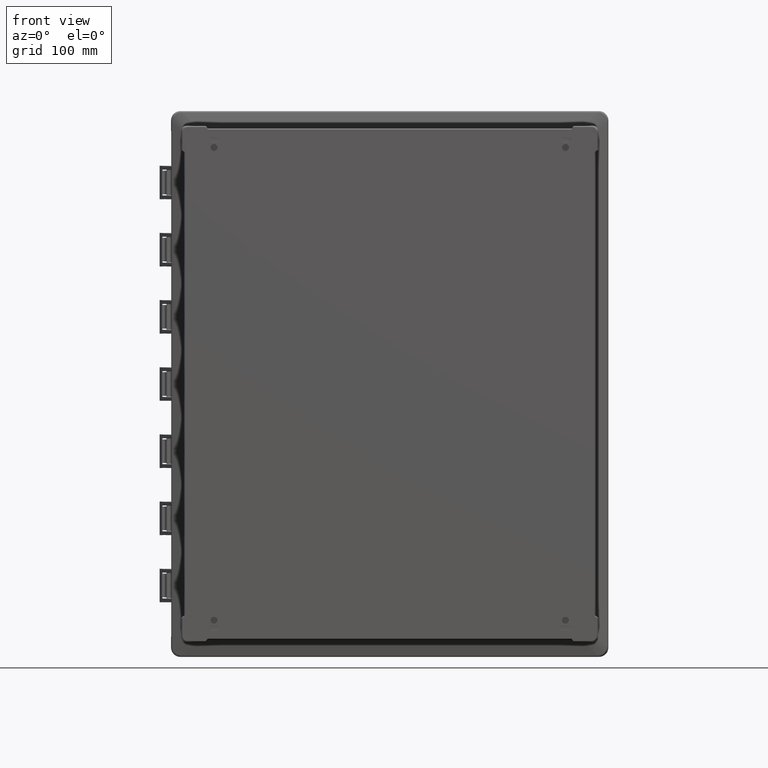
[diagram: clean part render]
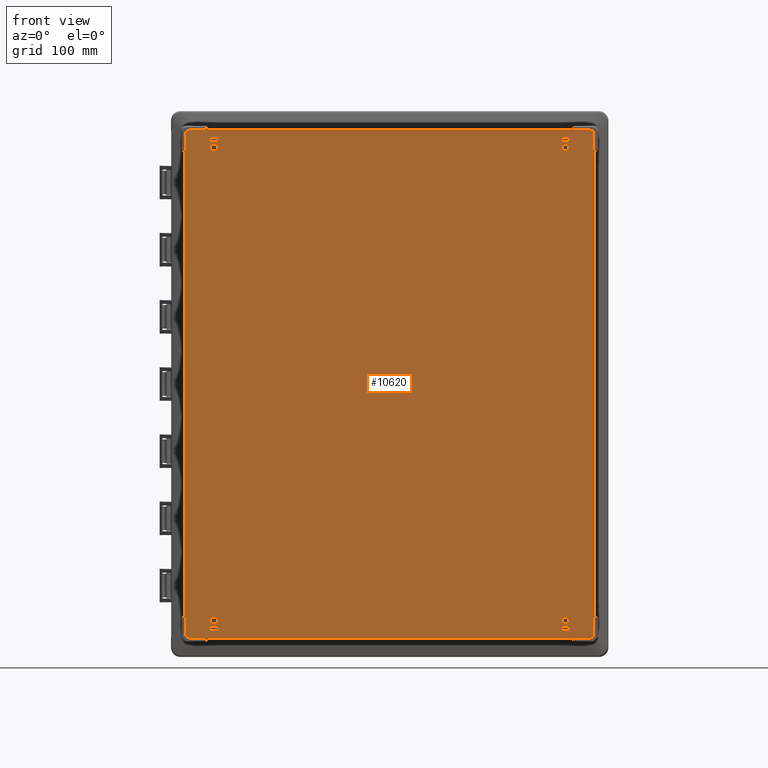
[diagram: same view with one face highlighted and labeled with its STEP entity id]
A machine part, front view. The second image highlights one B-rep face of the part: STEP entity #10620.
In plain terms, the highlighted planar face has unit normal (0, 1, 0).
Its self-contained STEP definition (entity closure, byte-faithful):
#34 = VERTEX_POINT ( 'NONE', #20179 ) ;
#49 = AXIS2_PLACEMENT_3D ( 'NONE', #17762, #17489, #17461 ) ;
#134 = B_SPLINE_CURVE_WITH_KNOTS ( 'NONE', 3,
 ( #27930, #24982, #22025, #19072 ),
 .UNSPECIFIED., .F., .F.,
 ( 4, 4 ),
 ( 0.0000000000000000000, 1.000000000000000000 ),
 .UNSPECIFIED. ) ;
#163 = CARTESIAN_POINT ( 'NONE',  ( -206.6226002191000100, -189.4000000000000100, 253.7470360444999900 ) ) ;
#173 = CIRCLE ( 'NONE', #2478, 0.5000000000000004400 ) ;
#178 = AXIS2_PLACEMENT_3D ( 'NONE', #23946, #20995, #18038 ) ;
#179 = VERTEX_POINT ( 'NONE', #18135 ) ;
#184 = DIRECTION ( 'NONE',  ( 1.000000000000000000, 0.0000000000000000000, 0.0000000000000000000 ) ) ;
#189 = ORIENTED_EDGE ( 'NONE', *, *, #13894, .F. ) ;
#213 = CARTESIAN_POINT ( 'NONE',  ( -187.3358505189668500, -189.4000000000000100, 257.0388907693917400 ) ) ;
#250 = CARTESIAN_POINT ( 'NONE',  ( -209.8471312403999900, -189.4000000000000100, -236.6179237881000000 ) ) ;
#253 = VERTEX_POINT ( 'NONE', #17044 ) ;
#268 = VERTEX_POINT ( 'NONE', #16599 ) ;
#376 = DIRECTION ( 'NONE',  ( -1.000000000000000000, 0.0000000000000000000, 0.0000000000000000000 ) ) ;
#396 = ORIENTED_EDGE ( 'NONE', *, *, #25455, .F. ) ;
#402 = CARTESIAN_POINT ( 'NONE',  ( 177.9000000000000100, -189.4000000000000100, 239.3000000000000100 ) ) ;
#404 = VERTEX_POINT ( 'NONE', #14309 ) ;
#485 = CARTESIAN_POINT ( 'NONE',  ( -207.7137684761455900, -189.4000028413141200, 236.3927161377510800 ) ) ;
#503 = DIRECTION ( 'NONE',  ( 0.0000000000000000000, -1.000000000000000000, 0.0000000000000000000 ) ) ;
#576 = VERTEX_POINT ( 'NONE', #10581 ) ;
#588 = CARTESIAN_POINT ( 'NONE',  ( -173.9000000000000100, -189.4000000000000100, -249.3000000000000100 ) ) ;
#603 = CARTESIAN_POINT ( 'NONE',  ( -173.9000000000000100, -189.4000000000000100, -245.3000000000000100 ) ) ;
#636 = EDGE_CURVE ( 'NONE', #21756, #27919, #9628, .T. ) ;
#679 = CARTESIAN_POINT ( 'NONE',  ( 186.2179237881000200, -189.4000000000000100, 260.2471312403999900 ) ) ;
#713 = FACE_OUTER_BOUND ( 'NONE', #20887, .T. ) ;
#715 = CARTESIAN_POINT ( 'NONE',  ( 173.9000000000000100, -189.4000000000000100, -245.3000000000000100 ) ) ;
#777 = DIRECTION ( 'NONE',  ( -1.000000000000000000, 0.0000000000000000000, 0.0000000000000000000 ) ) ;
#801 = DIRECTION ( 'NONE',  ( 0.0000000000000000000, 0.0000000000000000000, 1.000000000000000000 ) ) ;
#831 = DIRECTION ( 'NONE',  ( 0.0000000000000000000, 1.000000000000000000, 0.0000000000000000000 ) ) ;
#870 = CARTESIAN_POINT ( 'NONE',  ( 181.9000000000000100, -189.4000000000000100, 248.8000000000000100 ) ) ;
#907 = CIRCLE ( 'NONE', #26211, 0.5000000000000004400 ) ;
#909 = EDGE_LOOP ( 'NONE', ( #9790, #24346, #17185, #21669, #13718, #22846, #21001, #19378 ) ) ;
#931 = EDGE_CURVE ( 'NONE', #19685, #576, #5671, .T. ) ;
#1024 = B_SPLINE_CURVE_WITH_KNOTS ( 'NONE', 3,
 ( #24655, #24601, #24569, #24512 ),
 .UNSPECIFIED., .F., .F.,
 ( 4, 4 ),
 ( 0.0000000000000000000, 1.000000000000000000 ),
 .UNSPECIFIED. ) ;
#1061 = AXIS2_PLACEMENT_3D ( 'NONE', #18652, #15698, #12686 ) ;
#1095 = CARTESIAN_POINT ( 'NONE',  ( -206.6348181317999900, -189.4000000000000100, 238.4618614003000200 ) ) ;
#1133 = CIRCLE ( 'NONE', #22876, 0.5000000000000004400 ) ;
#1145 = VECTOR ( 'NONE', #24683, 1000.000000000000000 ) ;
#1243 = CARTESIAN_POINT ( 'NONE',  ( 181.9000000000000100, -189.4000000000000100, -245.3000000000000100 ) ) ;
#1277 = CIRCLE ( 'NONE', #9789, 0.5000000000000004400 ) ;
#1300 = EDGE_CURVE ( 'NONE', #18085, #8840, #6094, .T. ) ;
#1315 = CARTESIAN_POINT ( 'NONE',  ( -184.7863800412077900, -189.4000012242001400, 258.5139586212985700 ) ) ;
#1359 = VERTEX_POINT ( 'NONE', #715 ) ;
#1364 = CARTESIAN_POINT ( 'NONE',  ( -173.4000000000000100, -189.4000000000000100, -248.8000000000000100 ) ) ;
#1365 = EDGE_LOOP ( 'NONE', ( #7833, #24501 ) ) ;
#1390 = CARTESIAN_POINT ( 'NONE',  ( 184.0709002659000100, -189.4000000000000100, 257.6471312137999800 ) ) ;
#1431 = B_SPLINE_CURVE_WITH_KNOTS ( 'NONE', 3,
 ( #25374, #13526, #10515, #7534 ),
 .UNSPECIFIED., .F., .F.,
 ( 4, 4 ),
 ( 0.0000000000000000000, 1.000000000000000000 ),
 .UNSPECIFIED. ) ;
#1432 = B_SPLINE_CURVE_WITH_KNOTS ( 'NONE', 3,
 ( #28055, #27987, #27965, #27958 ),
 .UNSPECIFIED., .F., .F.,
 ( 4, 4 ),
 ( 0.0000000000000000000, 1.000000000000000000 ),
 .UNSPECIFIED. ) ;
#1472 = CARTESIAN_POINT ( 'NONE',  ( 173.9000000000000100, -189.4000000000000100, 248.8000000000000100 ) ) ;
#1479 = FACE_BOUND ( 'NONE', #11761, .T. ) ;
#1485 = LINE ( 'NONE', #27641, #1145 ) ;
#1563 = CARTESIAN_POINT ( 'NONE',  ( 173.9000000000000100, -189.4000000000000100, -249.3000000000000100 ) ) ;
#1613 = VERTEX_POINT ( 'NONE', #6339 ) ;
#1616 = DIRECTION ( 'NONE',  ( 0.0000000000000000000, -1.000000000000000000, 0.0000000000000000000 ) ) ;
#1641 = ORIENTED_EDGE ( 'NONE', *, *, #17540, .T. ) ;
#1703 = ORIENTED_EDGE ( 'NONE', *, *, #23472, .F. ) ;
#1754 = AXIS2_PLACEMENT_3D ( 'NONE', #2555, #2550, #2507 ) ;
#1766 = ORIENTED_EDGE ( 'NONE', *, *, #2922, .T. ) ;
#1846 = VECTOR ( 'NONE', #5633, 1000.000000000000000 ) ;
#1861 = ORIENTED_EDGE ( 'NONE', *, *, #21490, .F. ) ;
#1895 = EDGE_CURVE ( 'NONE', #20259, #25296, #1024, .T. ) ;
#1920 = CARTESIAN_POINT ( 'NONE',  ( -185.8805980163000100, -189.4000000000000100, 257.0470360444999800 ) ) ;
#1924 = CARTESIAN_POINT ( 'NONE',  ( 184.7863800412077900, -189.4000012242001400, -258.5139586212985700 ) ) ;
#1956 = CARTESIAN_POINT ( 'NONE',  ( -206.6348181317999900, -189.4000000000000100, 238.4618614003000200 ) ) ;
#2018 = VERTEX_POINT ( 'NONE', #22905 ) ;
#2074 = DIRECTION ( 'NONE',  ( 0.0000000000000000000, 0.0000000000000000000, 1.000000000000000000 ) ) ;
#2139 = CIRCLE ( 'NONE', #18232, 0.5000000000000004400 ) ;
#2160 = DIRECTION ( 'NONE',  ( 0.0000000000000000000, 1.000000000000000000, 0.0000000000000000000 ) ) ;
#2171 = VECTOR ( 'NONE', #3265, 1000.000000000000000 ) ;
#2204 = AXIS2_PLACEMENT_3D ( 'NONE', #20333, #17368, #14395 ) ;
#2209 = LINE ( 'NONE', #28325, #22112 ) ;
#2231 = VERTEX_POINT ( 'NONE', #17630 ) ;
#2259 = EDGE_CURVE ( 'NONE', #11053, #268, #24083, .T. ) ;
#2297 = CARTESIAN_POINT ( 'NONE',  ( -182.4000000000000100, -189.4000000000000100, -248.8000000000000100 ) ) ;
#2430 = CIRCLE ( 'NONE', #11927, 3.275564174676004500 ) ;
#2478 = AXIS2_PLACEMENT_3D ( 'NONE', #13109, #10108, #7146 ) ;
#2494 = LINE ( 'NONE', #28615, #24253 ) ;
#2499 = CARTESIAN_POINT ( 'NONE',  ( -182.4000000000000100, -189.4000000000000100, 248.8000000000000100 ) ) ;
#2503 = AXIS2_PLACEMENT_3D ( 'NONE', #7437, #21620, #27541 ) ;
#2507 = DIRECTION ( 'NONE',  ( 0.0000000000000000000, 0.0000000000000000000, -1.000000000000000000 ) ) ;
#2550 = DIRECTION ( 'NONE',  ( 0.0000000000000000000, 1.000000000000000000, 0.0000000000000000000 ) ) ;
#2555 = CARTESIAN_POINT ( 'NONE',  ( -181.9000000000000100, -189.4000000000000100, -248.8000000000000100 ) ) ;
#2575 = ORIENTED_EDGE ( 'NONE', *, *, #19302, .F. ) ;
#2597 = CARTESIAN_POINT ( 'NONE',  ( 182.4000000000000100, -189.4000000000000100, -245.8000000000000100 ) ) ;
#2604 = DIRECTION ( 'NONE',  ( 0.0000000000000000000, 1.000000000000000000, 0.0000000000000000000 ) ) ;
#2606 = CARTESIAN_POINT ( 'NONE',  ( 206.6388907693916500, -189.4000000000000100, 237.7347736056335100 ) ) ;
#2612 = CARTESIAN_POINT ( 'NONE',  ( 206.6226002191000100, -189.4000000000000100, 253.7470360444999900 ) ) ;
#2621 = ORIENTED_EDGE ( 'NONE', *, *, #29152, .F. ) ;
#2649 = CARTESIAN_POINT ( 'NONE',  ( 206.6429634069458200, -189.4000000000000100, 237.0076858109667600 ) ) ;
#2848 = CARTESIAN_POINT ( 'NONE',  ( 206.6348181317999900, -189.4000000000000100, -238.4618614003000200 ) ) ;
#2889 = ORIENTED_EDGE ( 'NONE', *, *, #11517, .F. ) ;
#2906 = VERTEX_POINT ( 'NONE', #7104 ) ;
#2922 = EDGE_CURVE ( 'NONE', #5959, #12480, #6989, .T. ) ;
#2944 = B_SPLINE_CURVE_WITH_KNOTS ( 'NONE', 3,
 ( #17062, #14093, #11085, #8106 ),
 .UNSPECIFIED., .F., .F.,
 ( 4, 4 ),
 ( 0.0000000000000000000, 1.000000000000000000 ),
 .UNSPECIFIED. ) ;
#2950 = CARTESIAN_POINT ( 'NONE',  ( 206.6470360445000000, -189.4000000000000100, 236.2805980162999900 ) ) ;
#3019 = FACE_BOUND ( 'NONE', #25505, .T. ) ;
#3174 = VERTEX_POINT ( 'NONE', #2499 ) ;
#3197 = VERTEX_POINT ( 'NONE', #2297 ) ;
#3199 = CARTESIAN_POINT ( 'NONE',  ( -206.6226008270375000, -189.4000497517026800, 248.6519778297667100 ) ) ;
#3202 = CARTESIAN_POINT ( 'NONE',  ( -186.2179237881000200, -189.4000000000000100, -260.2471312403999900 ) ) ;
#3214 = CARTESIAN_POINT ( 'NONE',  ( 188.0634767703000100, -189.4000000000000100, -257.0348181318000200 ) ) ;
#3225 = DIRECTION ( 'NONE',  ( 0.0000000000000000000, 1.000000000000000000, 0.0000000000000000000 ) ) ;
#3251 = CARTESIAN_POINT ( 'NONE',  ( -186.6082242676334300, -189.4000000000000100, 257.0429634069458300 ) ) ;
#3265 = DIRECTION ( 'NONE',  ( -1.000000000000000000, 0.0000000000000000000, 0.0000000000000000000 ) ) ;
#3278 = VERTEX_POINT ( 'NONE', #588 ) ;
#3288 = VERTEX_POINT ( 'NONE', #250 ) ;
#3306 = CARTESIAN_POINT ( 'NONE',  ( 181.9000000000000100, -189.4000000000000100, -245.8000000000000100 ) ) ;
#3376 = CIRCLE ( 'NONE', #18419, 3.500000000000003100 ) ;
#3408 = DIRECTION ( 'NONE',  ( 0.0000000000000000000, 1.000000000000000000, 0.0000000000000000000 ) ) ;
#3520 = CARTESIAN_POINT ( 'NONE',  ( -208.7805009077971500, -189.4000056826775400, 236.5048342591457000 ) ) ;
#3537 = VERTEX_POINT ( 'NONE', #15542 ) ;
#3540 = CARTESIAN_POINT ( 'NONE',  ( -173.9000000000000100, -189.4000000000000100, 245.8000000000000100 ) ) ;
#3607 = B_SPLINE_CURVE_WITH_KNOTS ( 'NONE', 3,
 ( #19909, #4936, #1924, #28050 ),
 .UNSPECIFIED., .F., .F.,
 ( 4, 4 ),
 ( 0.0000000000000000000, 1.000000000000000000 ),
 .UNSPECIFIED. ) ;
#3630 = LINE ( 'NONE', #603, #18274 ) ;
#3711 = VERTEX_POINT ( 'NONE', #7045 ) ;
#3712 = CARTESIAN_POINT ( 'NONE',  ( 186.1054818641173100, -189.4000000000000100, 259.1804328417719000 ) ) ;
#3726 = B_SPLINE_CURVE_WITH_KNOTS ( 'NONE', 3,
 ( #28743, #5636, #25778, #2612 ),
 .UNSPECIFIED., .F., .F.,
 ( 4, 4 ),
 ( 0.0000000000000000000, 1.000000000000000000 ),
 .UNSPECIFIED. ) ;
#3757 = VERTEX_POINT ( 'NONE', #10174 ) ;
#3772 = FACE_BOUND ( 'NONE', #17815, .T. ) ;
#3811 = CARTESIAN_POINT ( 'NONE',  ( 184.0709002659000100, -189.4000000000000100, 257.6471312137999800 ) ) ;
#3829 = ORIENTED_EDGE ( 'NONE', *, *, #6107, .T. ) ;
#3913 = B_SPLINE_CURVE_WITH_KNOTS ( 'NONE', 3,
 ( #15854, #12847, #9859, #6881 ),
 .UNSPECIFIED., .F., .F.,
 ( 4, 4 ),
 ( 0.0000000000000000000, 1.000000000000000000 ),
 .UNSPECIFIED. ) ;
#4002 = VERTEX_POINT ( 'NONE', #11375 ) ;
#4047 = CARTESIAN_POINT ( 'NONE',  ( -203.3470360444999900, -189.4000000000000100, 257.0226002191000100 ) ) ;
#4058 = DIRECTION ( 'NONE',  ( 0.0000000000000000000, 0.0000000000000000000, 1.000000000000000000 ) ) ;
#4080 = CIRCLE ( 'NONE', #4605, 3.500000000000003100 ) ;
#4090 = EDGE_CURVE ( 'NONE', #28904, #21584, #4080, .T. ) ;
#4101 = CARTESIAN_POINT ( 'NONE',  ( -184.0709002659000100, -189.4000000000000100, 257.6471312137999800 ) ) ;
#4103 = ORIENTED_EDGE ( 'NONE', *, *, #18150, .F. ) ;
#4127 = CARTESIAN_POINT ( 'NONE',  ( -206.6470354242175900, -189.3999289226741500, 237.7347736056334800 ) ) ;
#4138 = VERTEX_POINT ( 'NONE', #25608 ) ;
#4152 = DIRECTION ( 'NONE',  ( 0.0000000000000000000, 0.0000000000000000000, 1.000000000000000000 ) ) ;
#4156 = CARTESIAN_POINT ( 'NONE',  ( -182.4000000000000100, -189.4000000000000100, 245.8000000000000100 ) ) ;
#4172 = EDGE_CURVE ( 'NONE', #7900, #9466, #27246, .T. ) ;
#4178 = LINE ( 'NONE', #4156, #18370 ) ;
#4245 = EDGE_CURVE ( 'NONE', #21584, #28904, #28672, .T. ) ;
#4307 = VECTOR ( 'NONE', #7647, 1000.000000000000000 ) ;
#4344 = CARTESIAN_POINT ( 'NONE',  ( -184.0709002659000100, -189.4000000000000100, 257.6471312137999800 ) ) ;
#4346 = EDGE_CURVE ( 'NONE', #20925, #4138, #16064, .T. ) ;
#4350 = DIRECTION ( 'NONE',  ( 1.000000000000000000, 0.0000000000000000000, 0.0000000000000000000 ) ) ;
#4389 = ORIENTED_EDGE ( 'NONE', *, *, #21843, .F. ) ;
#4412 = CARTESIAN_POINT ( 'NONE',  ( -181.9000000000000100, -189.4000000000000100, -249.3000000000000100 ) ) ;
#4422 = CARTESIAN_POINT ( 'NONE',  ( 184.7865747733207200, -189.4000000000000100, 258.5137978893162100 ) ) ;
#4461 = ORIENTED_EDGE ( 'NONE', *, *, #27407, .T. ) ;
#4483 = CARTESIAN_POINT ( 'NONE',  ( -188.0634767703000100, -189.4000000000000100, -257.0348181318000200 ) ) ;
#4487 = DIRECTION ( 'NONE',  ( 1.000000000000000000, 0.0000000000000000000, 1.694705042277139700E-013 ) ) ;
#4508 = LINE ( 'NONE', #4412, #22096 ) ;
#4522 = VECTOR ( 'NONE', #9581, 1000.000000000000000 ) ;
#4578 = VERTEX_POINT ( 'NONE', #21258 ) ;
#4605 = AXIS2_PLACEMENT_3D ( 'NONE', #14106, #17073, #20047 ) ;
#4736 = VERTEX_POINT ( 'NONE', #10749 ) ;
#4754 = CARTESIAN_POINT ( 'NONE',  ( -206.6470360445000000, -189.4000000000000100, 236.2805980162999900 ) ) ;
#4814 = B_SPLINE_CURVE_WITH_KNOTS ( 'NONE', 3,
 ( #9221, #6241, #3199, #163 ),
 .UNSPECIFIED., .F., .F.,
 ( 4, 4 ),
 ( 0.0000000000000000000, 1.000000000000000000 ),
 .UNSPECIFIED. ) ;
#4936 = CARTESIAN_POINT ( 'NONE',  ( 185.5018598197212900, -189.4000024482382400, -259.3807860261519000 ) ) ;
#4978 = ORIENTED_EDGE ( 'NONE', *, *, #1895, .T. ) ;
#5076 = DIRECTION ( 'NONE',  ( 0.0000000000000000000, -1.000000000000000000, 0.0000000000000000000 ) ) ;
#5157 = CARTESIAN_POINT ( 'NONE',  ( -203.3470360444999900, -189.4000000000000100, 253.7470360444999900 ) ) ;
#5277 = VERTEX_POINT ( 'NONE', #23392 ) ;
#5291 = FACE_BOUND ( 'NONE', #20281, .T. ) ;
#5300 = DIRECTION ( 'NONE',  ( 0.0000000000000000000, 0.0000000000000000000, 1.000000000000000000 ) ) ;
#5526 = VERTEX_POINT ( 'NONE', #8699 ) ;
#5565 = VERTEX_POINT ( 'NONE', #1956 ) ;
#5620 = LINE ( 'NONE', #2597, #22149 ) ;
#5628 = CARTESIAN_POINT ( 'NONE',  ( -173.9000000000000100, -189.4000000000000100, -248.8000000000000100 ) ) ;
#5633 = DIRECTION ( 'NONE',  ( 1.000000000000000000, 0.0000000000000000000, 0.0000000000000000000 ) ) ;
#5636 = CARTESIAN_POINT ( 'NONE',  ( 206.6307454942459300, -189.4000000000000100, 243.5569196150333700 ) ) ;
#5640 = CARTESIAN_POINT ( 'NONE',  ( -181.9000000000000100, -189.4000000000000100, 249.3000000000000100 ) ) ;
#5671 = LINE ( 'NONE', #5640, #1846 ) ;
#5688 = VERTEX_POINT ( 'NONE', #23988 ) ;
#5759 = CIRCLE ( 'NONE', #1061, 3.275564174676004500 ) ;
#5900 = VERTEX_POINT ( 'NONE', #9459 ) ;
#5903 = CIRCLE ( 'NONE', #28690, 3.500000000000003100 ) ;
#5922 = EDGE_CURVE ( 'NONE', #12458, #26096, #11775, .T. ) ;
#5959 = VERTEX_POINT ( 'NONE', #6683 ) ;
#5984 = CIRCLE ( 'NONE', #25166, 0.5000000000000004400 ) ;
#5999 = ORIENTED_EDGE ( 'NONE', *, *, #24781, .F. ) ;
#6007 = EDGE_CURVE ( 'NONE', #18261, #15531, #3726, .T. ) ;
#6054 = ORIENTED_EDGE ( 'NONE', *, *, #2259, .F. ) ;
#6070 = FACE_BOUND ( 'NONE', #26418, .T. ) ;
#6091 = DIRECTION ( 'NONE',  ( 0.0000000000000000000, 1.000000000000000000, 0.0000000000000000000 ) ) ;
#6094 = CIRCLE ( 'NONE', #6619, 0.5000000000000004400 ) ;
#6107 = EDGE_CURVE ( 'NONE', #1613, #20259, #1432, .T. ) ;
#6196 = CARTESIAN_POINT ( 'NONE',  ( -186.2179237881000200, -189.4000000000000100, -260.2471312403999900 ) ) ;
#6217 = CARTESIAN_POINT ( 'NONE',  ( 185.8805980163000100, -189.4000000000000100, 257.0470360444999800 ) ) ;
#6241 = CARTESIAN_POINT ( 'NONE',  ( -206.6226014348995100, -189.4000995034058100, 243.5569196150333700 ) ) ;
#6244 = CARTESIAN_POINT ( 'NONE',  ( -186.1054818641173100, -189.4000000000000100, -259.1804328417719000 ) ) ;
#6248 = CARTESIAN_POINT ( 'NONE',  ( 206.6470360445000000, -189.4000000000000100, 236.2805980162999900 ) ) ;
#6256 = CARTESIAN_POINT ( 'NONE',  ( 187.3358505189668500, -189.4000000000000100, -257.0388907693917400 ) ) ;
#6267 = EDGE_CURVE ( 'NONE', #12480, #3288, #19377, .T. ) ;
#6289 = DIRECTION ( 'NONE',  ( 0.0000000000000000000, 0.0000000000000000000, -1.000000000000000000 ) ) ;
#6295 = CARTESIAN_POINT ( 'NONE',  ( -185.8805980163000100, -189.4000000000000100, 257.0470360444999800 ) ) ;
#6313 = ORIENTED_EDGE ( 'NONE', *, *, #16595, .T. ) ;
#6339 = CARTESIAN_POINT ( 'NONE',  ( 207.2471312138000000, -189.4000000000999900, 234.4709002659000100 ) ) ;
#6514 = ORIENTED_EDGE ( 'NONE', *, *, #24711, .T. ) ;
#6568 = CARTESIAN_POINT ( 'NONE',  ( -209.8471312403999900, -189.4000000000000100, 236.6179237881000000 ) ) ;
#6572 = CARTESIAN_POINT ( 'NONE',  ( 207.2471312138000000, -189.4000000000999900, -234.4709002659000100 ) ) ;
#6619 = AXIS2_PLACEMENT_3D ( 'NONE', #870, #831, #801 ) ;
#6683 = CARTESIAN_POINT ( 'NONE',  ( -207.2471312138000000, -189.4000000000999900, 234.4709002659000100 ) ) ;
#6749 = CARTESIAN_POINT ( 'NONE',  ( 188.0634767703000100, -189.4000000000000100, 257.0348181318000200 ) ) ;
#6768 = CARTESIAN_POINT ( 'NONE',  ( 185.9930399402086600, -189.4000000000000100, 258.1137344431359100 ) ) ;
#6810 = VECTOR ( 'NONE', #5300, 1000.000000000000000 ) ;
#6842 = FACE_BOUND ( 'NONE', #909, .T. ) ;
#6856 = EDGE_CURVE ( 'NONE', #28677, #3278, #4508, .T. ) ;
#6857 = LINE ( 'NONE', #3811, #24087 ) ;
#6860 = EDGE_CURVE ( 'NONE', #2906, #3174, #4178, .T. ) ;
#6881 = CARTESIAN_POINT ( 'NONE',  ( -206.6226002191000100, -189.4000000000000100, -253.7470360444999900 ) ) ;
#6938 = DIRECTION ( 'NONE',  ( 0.0000000000000000000, 0.0000000000000000000, -1.000000000000000000 ) ) ;
#6943 = DIRECTION ( 'NONE',  ( 1.000000000000000000, 0.0000000000000000000, 0.0000000000000000000 ) ) ;
#6949 = EDGE_CURVE ( 'NONE', #28677, #3197, #17804, .T. ) ;
#6964 = CARTESIAN_POINT ( 'NONE',  ( -207.2471312138000000, -189.4000000000999900, 234.4709002659000100 ) ) ;
#6989 = LINE ( 'NONE', #6964, #9142 ) ;
#6998 = CARTESIAN_POINT ( 'NONE',  ( 206.6470360445000000, -189.4000000000000100, -236.2805980162999900 ) ) ;
#7000 = ORIENTED_EDGE ( 'NONE', *, *, #24315, .F. ) ;
#7045 = CARTESIAN_POINT ( 'NONE',  ( -181.9000000000000100, -189.4000000000000100, -245.3000000000000100 ) ) ;
#7098 = CARTESIAN_POINT ( 'NONE',  ( 207.2471312138000000, -189.4000000000999900, -234.4709002659000100 ) ) ;
#7104 = CARTESIAN_POINT ( 'NONE',  ( -182.4000000000000100, -189.4000000000000100, 245.8000000000000100 ) ) ;
#7118 = AXIS2_PLACEMENT_3D ( 'NONE', #16019, #13018, #10020 ) ;
#7146 = DIRECTION ( 'NONE',  ( 1.000000000000000000, 0.0000000000000000000, 0.0000000000000000000 ) ) ;
#7162 = CARTESIAN_POINT ( 'NONE',  ( -206.6470357343587800, -189.3999644613370800, 237.0076858109667300 ) ) ;
#7183 = CARTESIAN_POINT ( 'NONE',  ( 181.9000000000000100, -189.4000000000000100, 245.8000000000000100 ) ) ;
#7282 = ORIENTED_EDGE ( 'NONE', *, *, #18258, .F. ) ;
#7378 = ORIENTED_EDGE ( 'NONE', *, *, #4245, .T. ) ;
#7405 = B_SPLINE_CURVE_WITH_KNOTS ( 'NONE', 3,
 ( #24582, #21622, #18668, #15716 ),
 .UNSPECIFIED., .F., .F.,
 ( 4, 4 ),
 ( 0.0000000000000000000, 1.000000000000000000 ),
 .UNSPECIFIED. ) ;
#7434 = DIRECTION ( 'NONE',  ( 0.0000000000000000000, 0.0000000000000000000, 1.000000000000000000 ) ) ;
#7437 = CARTESIAN_POINT ( 'NONE',  ( 177.9000000000000100, -189.4000000000000100, -239.3000000000000100 ) ) ;
#7447 = CARTESIAN_POINT ( 'NONE',  ( 185.5022492807103400, -189.4000000000000100, 259.3804645648581300 ) ) ;
#7482 = ORIENTED_EDGE ( 'NONE', *, *, #25792, .T. ) ;
#7510 = CARTESIAN_POINT ( 'NONE',  ( -187.3358505189668500, -189.3999289226741500, -257.0470354242175400 ) ) ;
#7512 = DIRECTION ( 'NONE',  ( 0.0000000000000000000, 1.000000000000000000, 0.0000000000000000000 ) ) ;
#7534 = CARTESIAN_POINT ( 'NONE',  ( -206.6470360445000000, -189.4000000000000100, -236.2805980162999900 ) ) ;
#7558 = ORIENTED_EDGE ( 'NONE', *, *, #24968, .T. ) ;
#7580 = FACE_BOUND ( 'NONE', #1365, .T. ) ;
#7647 = DIRECTION ( 'NONE',  ( 1.000000000000000000, 0.0000000000000000000, 0.0000000000000000000 ) ) ;
#7688 = EDGE_CURVE ( 'NONE', #5526, #18497, #19515, .T. ) ;
#7788 = B_SPLINE_CURVE_WITH_KNOTS ( 'NONE', 3,
 ( #1920, #28047, #25101, #22139 ),
 .UNSPECIFIED., .F., .F.,
 ( 4, 4 ),
 ( 0.0000000000000000000, 1.000000000000000000 ),
 .UNSPECIFIED. ) ;
#7833 = ORIENTED_EDGE ( 'NONE', *, *, #27166, .F. ) ;
#7873 = CARTESIAN_POINT ( 'NONE',  ( -182.4000000000000100, -189.4000000000000100, -245.8000000000000100 ) ) ;
#7900 = VERTEX_POINT ( 'NONE', #13415 ) ;
#7929 = ORIENTED_EDGE ( 'NONE', *, *, #12063, .F. ) ;
#7976 = EDGE_CURVE ( 'NONE', #3537, #13540, #10474, .T. ) ;
#7991 = ORIENTED_EDGE ( 'NONE', *, *, #17176, .T. ) ;
#8035 = ORIENTED_EDGE ( 'NONE', *, *, #17935, .F. ) ;
#8049 = EDGE_CURVE ( 'NONE', #22261, #22362, #2139, .T. ) ;
#8106 = CARTESIAN_POINT ( 'NONE',  ( -206.6348181317999900, -189.4000000000000100, -238.4618614003000200 ) ) ;
#8112 = CARTESIAN_POINT ( 'NONE',  ( -181.9000000000000100, -189.4000000000000100, 248.8000000000000100 ) ) ;
#8157 = EDGE_CURVE ( 'NONE', #25296, #18261, #17366, .T. ) ;
#8322 = ORIENTED_EDGE ( 'NONE', *, *, #6949, .T. ) ;
#8326 = CARTESIAN_POINT ( 'NONE',  ( 173.4000000000000100, -189.4000000000000100, -248.8000000000000100 ) ) ;
#8389 = B_SPLINE_CURVE_WITH_KNOTS ( 'NONE', 3,
 ( #18741, #15792, #12780, #9793 ),
 .UNSPECIFIED., .F., .F.,
 ( 4, 4 ),
 ( 0.0000000000000000000, 1.000000000000000000 ),
 .UNSPECIFIED. ) ;
#8401 = VECTOR ( 'NONE', #8502, 1000.000000000000000 ) ;
#8487 = EDGE_CURVE ( 'NONE', #18919, #2231, #13050, .T. ) ;
#8502 = DIRECTION ( 'NONE',  ( 0.0000000000000000000, 0.0000000000000000000, 1.000000000000000000 ) ) ;
#8632 = DIRECTION ( 'NONE',  ( 1.000000000000000000, 0.0000000000000000000, 0.0000000000000000000 ) ) ;
#8666 = B_SPLINE_CURVE_WITH_KNOTS ( 'NONE', 3,
 ( #15966, #12962, #9976, #6998 ),
 .UNSPECIFIED., .F., .F.,
 ( 4, 4 ),
 ( 0.0000000000000000000, 1.000000000000000000 ),
 .UNSPECIFIED. ) ;
#8699 = CARTESIAN_POINT ( 'NONE',  ( -186.2179237881000200, -189.4000000000000100, 260.2471312403999900 ) ) ;
#8840 = VERTEX_POINT ( 'NONE', #17057 ) ;
#9054 = ORIENTED_EDGE ( 'NONE', *, *, #8487, .F. ) ;
#9113 = VERTEX_POINT ( 'NONE', #28696 ) ;
#9142 = VECTOR ( 'NONE', #6938, 1000.000000000000000 ) ;
#9173 = B_SPLINE_CURVE_WITH_KNOTS ( 'NONE', 3,
 ( #24719, #18802, #15850, #12842 ),
 .UNSPECIFIED., .F., .F.,
 ( 4, 4 ),
 ( 0.0000000000000000000, 1.000000000000000000 ),
 .UNSPECIFIED. ) ;
#9221 = CARTESIAN_POINT ( 'NONE',  ( -206.6348181317999900, -189.4000000000000100, 238.4618614003000200 ) ) ;
#9223 = CARTESIAN_POINT ( 'NONE',  ( -185.9930399402086600, -189.4000000000000100, -258.1137344431359100 ) ) ;
#9234 = CARTESIAN_POINT ( 'NONE',  ( 186.6082242676334300, -189.4000000000000100, -257.0429634069458300 ) ) ;
#9244 = CARTESIAN_POINT ( 'NONE',  ( -177.9000000000000100, -189.4000000000000100, 239.3000000000000100 ) ) ;
#9270 = DIRECTION ( 'NONE',  ( 0.0000000000000000000, -1.000000000000000000, 0.0000000000000000000 ) ) ;
#9296 = VERTEX_POINT ( 'NONE', #16661 ) ;
#9402 = ORIENTED_EDGE ( 'NONE', *, *, #21082, .F. ) ;
#9459 = CARTESIAN_POINT ( 'NONE',  ( -209.8471312403999900, -189.4000000000000100, 236.6179237881000000 ) ) ;
#9466 = VERTEX_POINT ( 'NONE', #26581 ) ;
#9468 = ORIENTED_EDGE ( 'NONE', *, *, #24428, .F. ) ;
#9558 = CARTESIAN_POINT ( 'NONE',  ( -181.9000000000000100, -189.4000000000000100, 249.3000000000000100 ) ) ;
#9581 = DIRECTION ( 'NONE',  ( 0.0000000000000000000, 0.0000000000000000000, -1.000000000000000000 ) ) ;
#9602 = CARTESIAN_POINT ( 'NONE',  ( 173.4000000000000100, -189.4000000000000100, 248.8000000000000100 ) ) ;
#9628 = LINE ( 'NONE', #9602, #4522 ) ;
#9653 = EDGE_LOOP ( 'NONE', ( #21525, #7378 ) ) ;
#9738 = CARTESIAN_POINT ( 'NONE',  ( 185.8805980163000100, -189.4000000000000100, 257.0470360444999800 ) ) ;
#9768 = CIRCLE ( 'NONE', #178, 0.5000000000000004400 ) ;
#9789 = AXIS2_PLACEMENT_3D ( 'NONE', #1472, #27630, #24676 ) ;
#9790 = ORIENTED_EDGE ( 'NONE', *, *, #10067, .F. ) ;
#9793 = CARTESIAN_POINT ( 'NONE',  ( 206.6348181317999900, -189.4000000000000100, -238.4618614003000200 ) ) ;
#9834 = CIRCLE ( 'NONE', #19682, 3.275564174676004500 ) ;
#9859 = CARTESIAN_POINT ( 'NONE',  ( -206.6266728566918400, -189.4000000000000100, -248.6519778297667100 ) ) ;
#9976 = CARTESIAN_POINT ( 'NONE',  ( 207.7137684761455900, -189.4000028413141200, -236.3927161377510800 ) ) ;
#10020 = DIRECTION ( 'NONE',  ( -1.000000000000000000, 0.0000000000000000000, 0.0000000000000000000 ) ) ;
#10026 = EDGE_CURVE ( 'NONE', #23285, #7900, #17500, .T. ) ;
#10066 = LINE ( 'NONE', #7098, #25246 ) ;
#10067 = EDGE_CURVE ( 'NONE', #22261, #8840, #2494, .T. ) ;
#10093 = ORIENTED_EDGE ( 'NONE', *, *, #24382, .T. ) ;
#10108 = DIRECTION ( 'NONE',  ( 0.0000000000000000000, -1.000000000000000000, 0.0000000000000000000 ) ) ;
#10128 = CARTESIAN_POINT ( 'NONE',  ( -206.6470360445000000, -189.4000000000000100, 236.2805980162999900 ) ) ;
#10174 = CARTESIAN_POINT ( 'NONE',  ( -206.6348181317999900, -189.4000000000000100, -238.4618614003000200 ) ) ;
#10191 = DIRECTION ( 'NONE',  ( -1.000000000000000000, 0.0000000000000000000, 0.0000000000000000000 ) ) ;
#10265 = CIRCLE ( 'NONE', #19944, 0.5000000000000004400 ) ;
#10268 = CARTESIAN_POINT ( 'NONE',  ( 206.6226008270375000, -189.4000497517026800, -248.6519778297667100 ) ) ;
#10335 = ORIENTED_EDGE ( 'NONE', *, *, #18035, .T. ) ;
#10368 = CARTESIAN_POINT ( 'NONE',  ( 186.2179237881000200, -189.4000000000000100, 260.2471312403999900 ) ) ;
#10403 = CARTESIAN_POINT ( 'NONE',  ( 206.6226014348995100, -189.4000995034058100, -243.5569196150333700 ) ) ;
#10407 = DIRECTION ( 'NONE',  ( 0.0000000000000000000, 1.000000000000000000, 0.0000000000000000000 ) ) ;
#10418 = CARTESIAN_POINT ( 'NONE',  ( 186.2179237881000200, -189.4000000000000100, 260.2471312403999900 ) ) ;
#10428 = CARTESIAN_POINT ( 'NONE',  ( -206.6226002191000100, -189.4000000000000100, 253.7470360444999900 ) ) ;
#10430 = CARTESIAN_POINT ( 'NONE',  ( -203.3470360444999900, -189.4000000000000100, 257.0226002191000100 ) ) ;
#10466 = EDGE_CURVE ( 'NONE', #4578, #179, #13507, .T. ) ;
#10474 = B_SPLINE_CURVE_WITH_KNOTS ( 'NONE', 3,
 ( #2848, #10403, #10268, #10483 ),
 .UNSPECIFIED., .F., .F.,
 ( 4, 4 ),
 ( 0.0000000000000000000, 1.000000000000000000 ),
 .UNSPECIFIED. ) ;
#10483 = CARTESIAN_POINT ( 'NONE',  ( 206.6226002191000100, -189.4000000000000100, -253.7470360444999900 ) ) ;
#10484 = CARTESIAN_POINT ( 'NONE',  ( -186.6082242676334300, -189.3999644613370800, -257.0470357343587600 ) ) ;
#10488 = CARTESIAN_POINT ( 'NONE',  ( 203.3470360444999900, -189.4000000000000100, -253.7470360444999900 ) ) ;
#10515 = CARTESIAN_POINT ( 'NONE',  ( -207.7137344431280000, -189.4000000000000100, -236.3930399402837300 ) ) ;
#10581 = CARTESIAN_POINT ( 'NONE',  ( -173.9000000000000100, -189.4000000000000100, 249.3000000000000100 ) ) ;
#10620 = ADVANCED_FACE ( 'NONE', ( #713, #27611, #1479, #3019, #3772, #5291, #6070, #6842, #7580 ), #16400, .F. ) ;
#10626 = CARTESIAN_POINT ( 'NONE',  ( 173.9000000000000100, -189.4000000000000100, -245.3000000000000100 ) ) ;
#10715 = CARTESIAN_POINT ( 'NONE',  ( 173.4000000000000100, -189.4000000000000100, -248.8000000000000100 ) ) ;
#10749 = CARTESIAN_POINT ( 'NONE',  ( 206.6470360445000000, -189.4000000000000100, -236.2805980162999900 ) ) ;
#11005 = EDGE_CURVE ( 'NONE', #5959, #5900, #9173, .T. ) ;
#11053 = VERTEX_POINT ( 'NONE', #20710 ) ;
#11085 = CARTESIAN_POINT ( 'NONE',  ( -206.6388907693916500, -189.4000000000000100, -237.7347736056334800 ) ) ;
#11147 = B_SPLINE_CURVE_WITH_KNOTS ( 'NONE', 3,
 ( #10418, #7447, #4422, #1390 ),
 .UNSPECIFIED., .F., .F.,
 ( 4, 4 ),
 ( 0.0000000000000000000, 1.000000000000000000 ),
 .UNSPECIFIED. ) ;
#11152 = ORIENTED_EDGE ( 'NONE', *, *, #28515, .T. ) ;
#11306 = LINE ( 'NONE', #8326, #6810 ) ;
#11375 = CARTESIAN_POINT ( 'NONE',  ( 173.4000000000000100, -189.4000000000000100, -245.8000000000000100 ) ) ;
#11484 = CARTESIAN_POINT ( 'NONE',  ( -173.4000000000000100, -189.4000000000000100, -248.8000000000000100 ) ) ;
#11517 = EDGE_CURVE ( 'NONE', #13540, #13872, #2430, .T. ) ;
#11617 = DIRECTION ( 'NONE',  ( 0.0000000000000000000, -1.000000000000000000, 0.0000000000000000000 ) ) ;
#11697 = ORIENTED_EDGE ( 'NONE', *, *, #13790, .T. ) ;
#11732 = B_SPLINE_CURVE_WITH_KNOTS ( 'NONE', 3,
 ( #24981, #22023, #19071, #16118 ),
 .UNSPECIFIED., .F., .F.,
 ( 4, 4 ),
 ( 0.0000000000000000000, 1.000000000000000000 ),
 .UNSPECIFIED. ) ;
#11761 = EDGE_LOOP ( 'NONE', ( #27682, #7000, #7558, #27360, #6514, #16290, #13086, #9402 ) ) ;
#11775 = LINE ( 'NONE', #12275, #2171 ) ;
#11918 = EDGE_CURVE ( 'NONE', #18956, #27919, #13778, .T. ) ;
#11927 = AXIS2_PLACEMENT_3D ( 'NONE', #10488, #7512, #4487 ) ;
#11963 = EDGE_CURVE ( 'NONE', #18919, #13358, #27340, .T. ) ;
#12063 = EDGE_CURVE ( 'NONE', #18251, #576, #173, .T. ) ;
#12212 = CARTESIAN_POINT ( 'NONE',  ( -185.8805980163000100, -189.4000000000000100, -257.0470360444999800 ) ) ;
#12226 = CARTESIAN_POINT ( 'NONE',  ( 185.8805980163000100, -189.4000000000000100, -257.0470360444999800 ) ) ;
#12234 = DIRECTION ( 'NONE',  ( 1.000000000000000000, 0.0000000000000000000, 0.0000000000000000000 ) ) ;
#12237 = AXIS2_PLACEMENT_3D ( 'NONE', #18202, #15259, #12234 ) ;
#12275 = CARTESIAN_POINT ( 'NONE',  ( -173.9000000000000100, -189.4000000000000100, 245.3000000000000100 ) ) ;
#12381 = CARTESIAN_POINT ( 'NONE',  ( -174.4000000000000100, -189.4000000000000100, 239.3000000000000100 ) ) ;
#12449 = CARTESIAN_POINT ( 'NONE',  ( 181.4000000000000100, -189.4000000000000100, -239.3000000000000100 ) ) ;
#12458 = VERTEX_POINT ( 'NONE', #26356 ) ;
#12480 = VERTEX_POINT ( 'NONE', #13803 ) ;
#12483 = CARTESIAN_POINT ( 'NONE',  ( 181.9000000000000100, -189.4000000000000100, 245.3000000000000100 ) ) ;
#12583 = AXIS2_PLACEMENT_3D ( 'NONE', #15281, #9270, #6289 ) ;
#12684 = CARTESIAN_POINT ( 'NONE',  ( -185.8805980163000100, -189.4000000000000100, -257.0470360444999800 ) ) ;
#12686 = DIRECTION ( 'NONE',  ( -1.000000000000000000, 0.0000000000000000000, 1.694705042277139700E-013 ) ) ;
#12720 = EDGE_CURVE ( 'NONE', #13358, #13872, #7405, .T. ) ;
#12732 = VERTEX_POINT ( 'NONE', #17971 ) ;
#12780 = CARTESIAN_POINT ( 'NONE',  ( 206.6470354242175900, -189.3999289226741500, -237.7347736056334800 ) ) ;
#12796 = CARTESIAN_POINT ( 'NONE',  ( 207.2471312138000000, -189.4000000000999900, -234.4709002659000100 ) ) ;
#12836 = CARTESIAN_POINT ( 'NONE',  ( 206.6348181317999900, -189.4000000000000100, 238.4618614003000200 ) ) ;
#12842 = CARTESIAN_POINT ( 'NONE',  ( -209.8471312403999900, -189.4000000000000100, 236.6179237881000000 ) ) ;
#12847 = CARTESIAN_POINT ( 'NONE',  ( -206.6307454942459000, -189.4000000000000100, -243.5569196150333700 ) ) ;
#12926 = CARTESIAN_POINT ( 'NONE',  ( -173.4000000000000100, -189.4000000000000100, -245.8000000000000100 ) ) ;
#12937 = EDGE_CURVE ( 'NONE', #22946, #19839, #25337, .T. ) ;
#12962 = CARTESIAN_POINT ( 'NONE',  ( 208.7805009077971500, -189.4000056826775400, -236.5048342591457000 ) ) ;
#13018 = DIRECTION ( 'NONE',  ( 0.0000000000000000000, -1.000000000000000000, 0.0000000000000000000 ) ) ;
#13050 = B_SPLINE_CURVE_WITH_KNOTS ( 'NONE', 3,
 ( #26235, #26058, #25520, #25349 ),
 .UNSPECIFIED., .F., .F.,
 ( 4, 4 ),
 ( 0.0000000000000000000, 1.000000000000000000 ),
 .UNSPECIFIED. ) ;
#13086 = ORIENTED_EDGE ( 'NONE', *, *, #23512, .T. ) ;
#13109 = CARTESIAN_POINT ( 'NONE',  ( -173.9000000000000100, -189.4000000000000100, 248.8000000000000100 ) ) ;
#13177 = VERTEX_POINT ( 'NONE', #26365 ) ;
#13194 = DIRECTION ( 'NONE',  ( 0.0000000000000000000, -1.000000000000000000, 0.0000000000000000000 ) ) ;
#13233 = CARTESIAN_POINT ( 'NONE',  ( 206.6226002191000100, -189.4000000000000100, -253.7470360444999900 ) ) ;
#13358 = VERTEX_POINT ( 'NONE', #23010 ) ;
#13415 = CARTESIAN_POINT ( 'NONE',  ( -186.2179237881000200, -189.4000000000000100, -260.2471312403999900 ) ) ;
#13419 = CARTESIAN_POINT ( 'NONE',  ( -25.39999999999999900, -189.4000000000000100, 50.79999999999999700 ) ) ;
#13446 = CARTESIAN_POINT ( 'NONE',  ( -198.2525162864333800, -189.4000000000000100, 257.0266728566918500 ) ) ;
#13463 = EDGE_CURVE ( 'NONE', #20925, #1613, #10066, .T. ) ;
#13485 = AXIS2_PLACEMENT_3D ( 'NONE', #402, #17719, #14755 ) ;
#13496 = CARTESIAN_POINT ( 'NONE',  ( -185.8805980163000100, -189.4000000000000100, -257.0470360444999800 ) ) ;
#13507 = B_SPLINE_CURVE_WITH_KNOTS ( 'NONE', 3,
 ( #23855, #20917, #17957, #15003 ),
 .UNSPECIFIED., .F., .F.,
 ( 4, 4 ),
 ( 0.0000000000000000000, 1.000000000000000000 ),
 .UNSPECIFIED. ) ;
#13526 = CARTESIAN_POINT ( 'NONE',  ( -208.7804328417640000, -189.4000000000000100, -236.5054818641918600 ) ) ;
#13540 = VERTEX_POINT ( 'NONE', #13233 ) ;
#13640 = LINE ( 'NONE', #10626, #4307 ) ;
#13663 = CARTESIAN_POINT ( 'NONE',  ( 173.9000000000000100, -189.4000000000000100, -248.8000000000000100 ) ) ;
#13718 = ORIENTED_EDGE ( 'NONE', *, *, #636, .F. ) ;
#13778 = CIRCLE ( 'NONE', #21862, 0.5000000000000004400 ) ;
#13790 = EDGE_CURVE ( 'NONE', #17592, #26756, #21106, .T. ) ;
#13803 = CARTESIAN_POINT ( 'NONE',  ( -207.2471312138000000, -189.4000000000999900, -234.4709002659000100 ) ) ;
#13872 = VERTEX_POINT ( 'NONE', #17462 ) ;
#13874 = ORIENTED_EDGE ( 'NONE', *, *, #4346, .F. ) ;
#13894 = EDGE_CURVE ( 'NONE', #22587, #25271, #20432, .T. ) ;
#14035 = EDGE_CURVE ( 'NONE', #404, #5526, #7788, .T. ) ;
#14058 = ORIENTED_EDGE ( 'NONE', *, *, #11005, .F. ) ;
#14093 = CARTESIAN_POINT ( 'NONE',  ( -206.6429634069458200, -189.4000000000000100, -237.0076858109667300 ) ) ;
#14106 = CARTESIAN_POINT ( 'NONE',  ( 177.9000000000000100, -189.4000000000000100, -239.3000000000000100 ) ) ;
#14182 = ORIENTED_EDGE ( 'NONE', *, *, #19488, .F. ) ;
#14309 = CARTESIAN_POINT ( 'NONE',  ( -185.8805980163000100, -189.4000000000000100, 257.0470360444999800 ) ) ;
#14395 = DIRECTION ( 'NONE',  ( 0.0000000000000000000, 0.0000000000000000000, 1.000000000000000000 ) ) ;
#14423 = VECTOR ( 'NONE', #16469, 1000.000000000000000 ) ;
#14454 = VERTEX_POINT ( 'NONE', #10715 ) ;
#14567 = CIRCLE ( 'NONE', #12583, 0.5000000000000004400 ) ;
#14755 = DIRECTION ( 'NONE',  ( -1.000000000000000000, 0.0000000000000000000, 0.0000000000000000000 ) ) ;
#14778 = ORIENTED_EDGE ( 'NONE', *, *, #6007, .T. ) ;
#14900 = ORIENTED_EDGE ( 'NONE', *, *, #6267, .T. ) ;
#14951 = DIRECTION ( 'NONE',  ( -1.000000000000000000, 0.0000000000000000000, 0.0000000000000000000 ) ) ;
#15003 = CARTESIAN_POINT ( 'NONE',  ( -203.3470360444999900, -189.4000000000000100, -257.0226002191000100 ) ) ;
#15097 = EDGE_CURVE ( 'NONE', #9113, #3757, #2944, .T. ) ;
#15133 = VERTEX_POINT ( 'NONE', #10368 ) ;
#15196 = B_SPLINE_CURVE_WITH_KNOTS ( 'NONE', 3,
 ( #10128, #7162, #4127, #1095 ),
 .UNSPECIFIED., .F., .F.,
 ( 4, 4 ),
 ( 0.0000000000000000000, 1.000000000000000000 ),
 .UNSPECIFIED. ) ;
#15259 = DIRECTION ( 'NONE',  ( 0.0000000000000000000, 1.000000000000000000, 0.0000000000000000000 ) ) ;
#15267 = CARTESIAN_POINT ( 'NONE',  ( 181.9000000000000100, -189.4000000000000100, 249.3000000000000100 ) ) ;
#15277 = ORIENTED_EDGE ( 'NONE', *, *, #4172, .T. ) ;
#15281 = CARTESIAN_POINT ( 'NONE',  ( 181.9000000000000100, -189.4000000000000100, -248.8000000000000100 ) ) ;
#15385 = CARTESIAN_POINT ( 'NONE',  ( 185.8805980163000100, -189.4000000000000100, -257.0470360444999800 ) ) ;
#15386 = ORIENTED_EDGE ( 'NONE', *, *, #13463, .T. ) ;
#15447 = CARTESIAN_POINT ( 'NONE',  ( -181.9000000000000100, -189.4000000000000100, -245.8000000000000100 ) ) ;
#15470 = EDGE_CURVE ( 'NONE', #17213, #3197, #2209, .T. ) ;
#15531 = VERTEX_POINT ( 'NONE', #26936 ) ;
#15542 = CARTESIAN_POINT ( 'NONE',  ( 206.6348181317999900, -189.4000000000000100, -238.4618614003000200 ) ) ;
#15555 = CARTESIAN_POINT ( 'NONE',  ( 208.1139586210278500, -189.4000012245980400, -235.1863800415333700 ) ) ;
#15592 = CARTESIAN_POINT ( 'NONE',  ( 174.4000000000000100, -189.4000000000000100, -239.3000000000000100 ) ) ;
#15698 = DIRECTION ( 'NONE',  ( 0.0000000000000000000, -1.000000000000000000, 0.0000000000000000000 ) ) ;
#15716 = CARTESIAN_POINT ( 'NONE',  ( 203.3470360444999900, -189.4000000000000100, -257.0226002191000100 ) ) ;
#15792 = CARTESIAN_POINT ( 'NONE',  ( 206.6470357343587800, -189.3999644613370800, -237.0076858109667300 ) ) ;
#15850 = CARTESIAN_POINT ( 'NONE',  ( -208.9807860258812300, -189.4000024486361400, 235.9018598200469800 ) ) ;
#15854 = CARTESIAN_POINT ( 'NONE',  ( -206.6348181317999900, -189.4000000000000100, -238.4618614003000200 ) ) ;
#15895 = CARTESIAN_POINT ( 'NONE',  ( -173.9000000000000100, -189.4000000000000100, -245.3000000000000100 ) ) ;
#15966 = CARTESIAN_POINT ( 'NONE',  ( 209.8471312403999900, -189.4000000000000100, -236.6179237881000000 ) ) ;
#16019 = CARTESIAN_POINT ( 'NONE',  ( -181.9000000000000100, -189.4000000000000100, 245.8000000000000100 ) ) ;
#16064 = B_SPLINE_CURVE_WITH_KNOTS ( 'NONE', 3,
 ( #6572, #15555, #18498, #22995 ),
 .UNSPECIFIED., .F., .F.,
 ( 4, 4 ),
 ( 0.0000000000000000000, 1.000000000000000000 ),
 .UNSPECIFIED. ) ;
#16118 = CARTESIAN_POINT ( 'NONE',  ( 203.3470360444999900, -189.4000000000000100, 257.0226002191000100 ) ) ;
#16135 = ORIENTED_EDGE ( 'NONE', *, *, #23990, .T. ) ;
#16227 = CARTESIAN_POINT ( 'NONE',  ( -185.5022492807103400, -189.4000000000000100, -259.3804645648581300 ) ) ;
#16266 = ORIENTED_EDGE ( 'NONE', *, *, #24020, .T. ) ;
#16290 = ORIENTED_EDGE ( 'NONE', *, *, #23505, .F. ) ;
#16400 = PLANE ( 'NONE',  #29128 ) ;
#16423 = VERTEX_POINT ( 'NONE', #12381 ) ;
#16426 = CARTESIAN_POINT ( 'NONE',  ( -193.1579965283666800, -189.4000000000000100, 257.0307454942459300 ) ) ;
#16469 = DIRECTION ( 'NONE',  ( -1.000000000000000000, 0.0000000000000000000, 0.0000000000000000000 ) ) ;
#16562 = VERTEX_POINT ( 'NONE', #10428 ) ;
#16595 = EDGE_CURVE ( 'NONE', #16702, #15133, #25785, .T. ) ;
#16599 = CARTESIAN_POINT ( 'NONE',  ( -174.4000000000000100, -189.4000000000000100, -239.3000000000000100 ) ) ;
#16646 = DIRECTION ( 'NONE',  ( 1.000000000000000000, 0.0000000000000000000, -1.694705042277139700E-013 ) ) ;
#16661 = CARTESIAN_POINT ( 'NONE',  ( 173.9000000000000100, -189.4000000000000100, 249.3000000000000100 ) ) ;
#16702 = VERTEX_POINT ( 'NONE', #6217 ) ;
#17030 = ORIENTED_EDGE ( 'NONE', *, *, #6860, .T. ) ;
#17035 = EDGE_CURVE ( 'NONE', #22587, #3278, #25362, .T. ) ;
#17044 = CARTESIAN_POINT ( 'NONE',  ( 184.0709002659000100, -189.4000000000000100, -257.6471312137999800 ) ) ;
#17057 = CARTESIAN_POINT ( 'NONE',  ( 182.4000000000000100, -189.4000000000000100, 248.8000000000000100 ) ) ;
#17062 = CARTESIAN_POINT ( 'NONE',  ( -206.6470360445000000, -189.4000000000000100, -236.2805980162999900 ) ) ;
#17073 = DIRECTION ( 'NONE',  ( 0.0000000000000000000, 1.000000000000000000, 0.0000000000000000000 ) ) ;
#17126 = CIRCLE ( 'NONE', #25700, 0.5000000000000004400 ) ;
#17152 = CARTESIAN_POINT ( 'NONE',  ( -173.4000000000000100, -189.4000000000000100, 248.8000000000000100 ) ) ;
#17176 = EDGE_CURVE ( 'NONE', #404, #17592, #23726, .T. ) ;
#17185 = ORIENTED_EDGE ( 'NONE', *, *, #17543, .F. ) ;
#17213 = VERTEX_POINT ( 'NONE', #7873 ) ;
#17270 = CARTESIAN_POINT ( 'NONE',  ( -184.0709002659000100, -189.4000000000000100, -257.6471312137999800 ) ) ;
#17334 = EDGE_CURVE ( 'NONE', #1359, #4002, #9768, .T. ) ;
#17366 = B_SPLINE_CURVE_WITH_KNOTS ( 'NONE', 3,
 ( #2950, #2649, #2606, #12836 ),
 .UNSPECIFIED., .F., .F.,
 ( 4, 4 ),
 ( 0.0000000000000000000, 1.000000000000000000 ),
 .UNSPECIFIED. ) ;
#17368 = DIRECTION ( 'NONE',  ( 0.0000000000000000000, 1.000000000000000000, 0.0000000000000000000 ) ) ;
#17376 = CARTESIAN_POINT ( 'NONE',  ( -186.2179237881000200, -189.4000000000000100, 260.2471312403999900 ) ) ;
#17379 = ORIENTED_EDGE ( 'NONE', *, *, #25428, .F. ) ;
#17461 = DIRECTION ( 'NONE',  ( 1.000000000000000000, 0.0000000000000000000, 0.0000000000000000000 ) ) ;
#17462 = CARTESIAN_POINT ( 'NONE',  ( 203.3470360444999900, -189.4000000000000100, -257.0226002191000100 ) ) ;
#17489 = DIRECTION ( 'NONE',  ( 0.0000000000000000000, -1.000000000000000000, 0.0000000000000000000 ) ) ;
#17500 = B_SPLINE_CURVE_WITH_KNOTS ( 'NONE', 3,
 ( #12212, #9223, #6244, #3202 ),
 .UNSPECIFIED., .F., .F.,
 ( 4, 4 ),
 ( 0.0000000000000000000, 1.000000000000000000 ),
 .UNSPECIFIED. ) ;
#17502 = ORIENTED_EDGE ( 'NONE', *, *, #19757, .T. ) ;
#17540 = EDGE_CURVE ( 'NONE', #3288, #9113, #1431, .T. ) ;
#17543 = EDGE_CURVE ( 'NONE', #18956, #22362, #1485, .T. ) ;
#17592 = VERTEX_POINT ( 'NONE', #18071 ) ;
#17630 = CARTESIAN_POINT ( 'NONE',  ( 186.2179237881000200, -189.4000000000000100, -260.2471312403999900 ) ) ;
#17697 = ORIENTED_EDGE ( 'NONE', *, *, #12720, .T. ) ;
#17719 = DIRECTION ( 'NONE',  ( 0.0000000000000000000, -1.000000000000000000, 0.0000000000000000000 ) ) ;
#17762 = CARTESIAN_POINT ( 'NONE',  ( -177.9000000000000100, -189.4000000000000100, -239.3000000000000100 ) ) ;
#17804 = CIRCLE ( 'NONE', #1754, 0.5000000000000004400 ) ;
#17815 = EDGE_LOOP ( 'NONE', ( #6054, #1703 ) ) ;
#17910 = CARTESIAN_POINT ( 'NONE',  ( 184.0709002659000100, -189.4000000000000100, -257.6471312137999800 ) ) ;
#17935 = EDGE_CURVE ( 'NONE', #23285, #4578, #19582, .T. ) ;
#17957 = CARTESIAN_POINT ( 'NONE',  ( -198.2525162864333800, -189.4000497517026800, -257.0226008270374800 ) ) ;
#17963 = EDGE_CURVE ( 'NONE', #4736, #3537, #8389, .T. ) ;
#17971 = CARTESIAN_POINT ( 'NONE',  ( 174.4000000000000100, -189.4000000000000100, 239.3000000000000100 ) ) ;
#18035 = EDGE_CURVE ( 'NONE', #15531, #27050, #18735, .T. ) ;
#18038 = DIRECTION ( 'NONE',  ( 0.0000000000000000000, 0.0000000000000000000, 1.000000000000000000 ) ) ;
#18059 = VECTOR ( 'NONE', #22560, 1000.000000000000000 ) ;
#18071 = CARTESIAN_POINT ( 'NONE',  ( -188.0634767703000100, -189.4000000000000100, 257.0348181318000200 ) ) ;
#18085 = VERTEX_POINT ( 'NONE', #15267 ) ;
#18135 = CARTESIAN_POINT ( 'NONE',  ( -203.3470360444999900, -189.4000000000000100, -257.0226002191000100 ) ) ;
#18150 = EDGE_CURVE ( 'NONE', #26736, #5565, #15196, .T. ) ;
#18202 = CARTESIAN_POINT ( 'NONE',  ( -177.9000000000000100, -189.4000000000000100, 239.3000000000000100 ) ) ;
#18232 = AXIS2_PLACEMENT_3D ( 'NONE', #7183, #6091, #6943 ) ;
#18251 = VERTEX_POINT ( 'NONE', #17152 ) ;
#18258 = EDGE_CURVE ( 'NONE', #16562, #26756, #9834, .T. ) ;
#18261 = VERTEX_POINT ( 'NONE', #22351 ) ;
#18274 = VECTOR ( 'NONE', #26784, 1000.000000000000000 ) ;
#18370 = VECTOR ( 'NONE', #4152, 1000.000000000000000 ) ;
#18419 = AXIS2_PLACEMENT_3D ( 'NONE', #27171, #24197, #21242 ) ;
#18497 = VERTEX_POINT ( 'NONE', #4101 ) ;
#18498 = CARTESIAN_POINT ( 'NONE',  ( 208.9807860258812300, -189.4000024486361400, -235.9018598200469800 ) ) ;
#18590 = VERTEX_POINT ( 'NONE', #1243 ) ;
#18635 = CARTESIAN_POINT ( 'NONE',  ( -173.4000000000000100, -189.4000000000000100, 245.8000000000000100 ) ) ;
#18652 = CARTESIAN_POINT ( 'NONE',  ( -203.3470360444999900, -189.4000000000000100, -253.7470360444999900 ) ) ;
#18668 = CARTESIAN_POINT ( 'NONE',  ( 198.2525162864333800, -189.4000000000000100, -257.0266728566918500 ) ) ;
#18735 = CIRCLE ( 'NONE', #21702, 3.275564174676004500 ) ;
#18741 = CARTESIAN_POINT ( 'NONE',  ( 206.6470360445000000, -189.4000000000000100, -236.2805980162999900 ) ) ;
#18802 = CARTESIAN_POINT ( 'NONE',  ( -208.1139586210278500, -189.4000012245980400, 235.1863800415333700 ) ) ;
#18919 = VERTEX_POINT ( 'NONE', #15385 ) ;
#18949 = CIRCLE ( 'NONE', #7118, 0.5000000000000004400 ) ;
#18956 = VERTEX_POINT ( 'NONE', #19201 ) ;
#19026 = VECTOR ( 'NONE', #14951, 1000.000000000000000 ) ;
#19071 = CARTESIAN_POINT ( 'NONE',  ( 198.2525162864333800, -189.4000497517026800, 257.0226008270374800 ) ) ;
#19072 = CARTESIAN_POINT ( 'NONE',  ( 188.0634767703000100, -189.4000000000000100, 257.0348181318000200 ) ) ;
#19197 = CARTESIAN_POINT ( 'NONE',  ( -184.7865747733207200, -189.4000000000000100, -258.5137978893162100 ) ) ;
#19201 = CARTESIAN_POINT ( 'NONE',  ( 173.9000000000000100, -189.4000000000000100, 245.3000000000000100 ) ) ;
#19302 = EDGE_CURVE ( 'NONE', #19685, #3174, #907, .T. ) ;
#19362 = VERTEX_POINT ( 'NONE', #18635 ) ;
#19377 = B_SPLINE_CURVE_WITH_KNOTS ( 'NONE', 3,
 ( #24852, #24803, #24777, #24750 ),
 .UNSPECIFIED., .F., .F.,
 ( 4, 4 ),
 ( 0.0000000000000000000, 1.000000000000000000 ),
 .UNSPECIFIED. ) ;
#19378 = ORIENTED_EDGE ( 'NONE', *, *, #1300, .T. ) ;
#19394 = CARTESIAN_POINT ( 'NONE',  ( -188.0634767703000100, -189.4000000000000100, 257.0348181318000200 ) ) ;
#19439 = CARTESIAN_POINT ( 'NONE',  ( 181.9000000000000100, -189.4000000000000100, -249.3000000000000100 ) ) ;
#19488 = EDGE_CURVE ( 'NONE', #2906, #26096, #18949, .T. ) ;
#19515 = B_SPLINE_CURVE_WITH_KNOTS ( 'NONE', 3,
 ( #17376, #27470, #1315, #4344 ),
 .UNSPECIFIED., .F., .F.,
 ( 4, 4 ),
 ( 0.0000000000000000000, 1.000000000000000000 ),
 .UNSPECIFIED. ) ;
#19582 = B_SPLINE_CURVE_WITH_KNOTS ( 'NONE', 3,
 ( #13496, #10484, #7510, #4483 ),
 .UNSPECIFIED., .F., .F.,
 ( 4, 4 ),
 ( 0.0000000000000000000, 1.000000000000000000 ),
 .UNSPECIFIED. ) ;
#19586 = ORIENTED_EDGE ( 'NONE', *, *, #15470, .F. ) ;
#19627 = DIRECTION ( 'NONE',  ( 0.0000000000000000000, -1.000000000000000000, 0.0000000000000000000 ) ) ;
#19682 = AXIS2_PLACEMENT_3D ( 'NONE', #5157, #2160, #28273 ) ;
#19685 = VERTEX_POINT ( 'NONE', #9558 ) ;
#19757 = EDGE_CURVE ( 'NONE', #15133, #23048, #11147, .T. ) ;
#19839 = VERTEX_POINT ( 'NONE', #1563 ) ;
#19909 = CARTESIAN_POINT ( 'NONE',  ( 186.2179237881000200, -189.4000000000000100, -260.2471312403999900 ) ) ;
#19944 = AXIS2_PLACEMENT_3D ( 'NONE', #3306, #11617, #8632 ) ;
#19987 = ORIENTED_EDGE ( 'NONE', *, *, #11963, .T. ) ;
#20036 = CARTESIAN_POINT ( 'NONE',  ( 181.9000000000000100, -189.4000000000000100, -249.3000000000000100 ) ) ;
#20047 = DIRECTION ( 'NONE',  ( -1.000000000000000000, 0.0000000000000000000, 0.0000000000000000000 ) ) ;
#20179 = CARTESIAN_POINT ( 'NONE',  ( -181.4000000000000100, -189.4000000000000100, 239.3000000000000100 ) ) ;
#20259 = VERTEX_POINT ( 'NONE', #26305 ) ;
#20281 = EDGE_LOOP ( 'NONE', ( #10093, #25333 ) ) ;
#20301 = DIRECTION ( 'NONE',  ( 0.0000000000000000000, 0.0000000000000000000, -1.000000000000000000 ) ) ;
#20333 = CARTESIAN_POINT ( 'NONE',  ( -173.9000000000000100, -189.4000000000000100, -245.8000000000000100 ) ) ;
#20432 = LINE ( 'NONE', #11484, #8401 ) ;
#20636 = ORIENTED_EDGE ( 'NONE', *, *, #10026, .T. ) ;
#20710 = CARTESIAN_POINT ( 'NONE',  ( -181.4000000000000100, -189.4000000000000100, -239.3000000000000100 ) ) ;
#20887 = EDGE_LOOP ( 'NONE', ( #3829, #4978, #26825, #14778, #10335, #1861, #9468, #6313, #17502, #4461, #22730, #24165, #7991, #11697, #7282, #5999, #4103, #24671, #14058, #1766, #14900, #1641, #23974, #11152, #26450, #26108, #8035, #20636, #15277, #396, #27485, #9054, #19987, #17697, #2889, #28487, #26777, #2621, #13874, #15386 ) ) ;
#20917 = CARTESIAN_POINT ( 'NONE',  ( -193.1579965283666800, -189.4000995034058100, -257.0226014348994000 ) ) ;
#20922 = CARTESIAN_POINT ( 'NONE',  ( 173.4000000000000100, -189.4000000000000100, 245.8000000000000100 ) ) ;
#20925 = VERTEX_POINT ( 'NONE', #12796 ) ;
#20995 = DIRECTION ( 'NONE',  ( 0.0000000000000000000, -1.000000000000000000, 0.0000000000000000000 ) ) ;
#21001 = ORIENTED_EDGE ( 'NONE', *, *, #27410, .F. ) ;
#21038 = DIRECTION ( 'NONE',  ( -1.000000000000000000, 0.0000000000000000000, 0.0000000000000000000 ) ) ;
#21082 = EDGE_CURVE ( 'NONE', #22946, #13177, #14567, .T. ) ;
#21106 = B_SPLINE_CURVE_WITH_KNOTS ( 'NONE', 3,
 ( #19394, #16426, #13446, #10430 ),
 .UNSPECIFIED., .F., .F.,
 ( 4, 4 ),
 ( 0.0000000000000000000, 1.000000000000000000 ),
 .UNSPECIFIED. ) ;
#21242 = DIRECTION ( 'NONE',  ( 1.000000000000000000, 0.0000000000000000000, 0.0000000000000000000 ) ) ;
#21258 = CARTESIAN_POINT ( 'NONE',  ( -188.0634767703000100, -189.4000000000000100, -257.0348181318000200 ) ) ;
#21272 = CARTESIAN_POINT ( 'NONE',  ( 184.0709002659000100, -189.4000000000000100, 257.6471312137999800 ) ) ;
#21490 = EDGE_CURVE ( 'NONE', #26568, #27050, #11732, .T. ) ;
#21525 = ORIENTED_EDGE ( 'NONE', *, *, #4090, .T. ) ;
#21584 = VERTEX_POINT ( 'NONE', #15592 ) ;
#21590 = B_SPLINE_CURVE_WITH_KNOTS ( 'NONE', 3,
 ( #6568, #3520, #485, #26679 ),
 .UNSPECIFIED., .F., .F.,
 ( 4, 4 ),
 ( 0.0000000000000000000, 1.000000000000000000 ),
 .UNSPECIFIED. ) ;
#21620 = DIRECTION ( 'NONE',  ( 0.0000000000000000000, 1.000000000000000000, 0.0000000000000000000 ) ) ;
#21622 = CARTESIAN_POINT ( 'NONE',  ( 193.1579965283666800, -189.4000000000000100, -257.0307454942459300 ) ) ;
#21656 = AXIS2_PLACEMENT_3D ( 'NONE', #25053, #13194, #10191 ) ;
#21669 = ORIENTED_EDGE ( 'NONE', *, *, #11918, .T. ) ;
#21702 = AXIS2_PLACEMENT_3D ( 'NONE', #22545, #19627, #16646 ) ;
#21756 = VERTEX_POINT ( 'NONE', #21826 ) ;
#21826 = CARTESIAN_POINT ( 'NONE',  ( 173.4000000000000100, -189.4000000000000100, 248.8000000000000100 ) ) ;
#21843 = EDGE_CURVE ( 'NONE', #12458, #19362, #1133, .T. ) ;
#21862 = AXIS2_PLACEMENT_3D ( 'NONE', #26208, #23219, #20301 ) ;
#22023 = CARTESIAN_POINT ( 'NONE',  ( 193.1579965283666800, -189.4000995034058100, 257.0226014348994000 ) ) ;
#22025 = CARTESIAN_POINT ( 'NONE',  ( 187.3358505189668500, -189.3999289226741500, 257.0470354242175400 ) ) ;
#22041 = VERTEX_POINT ( 'NONE', #15895 ) ;
#22096 = VECTOR ( 'NONE', #4350, 1000.000000000000000 ) ;
#22112 = VECTOR ( 'NONE', #25368, 1000.000000000000000 ) ;
#22139 = CARTESIAN_POINT ( 'NONE',  ( -186.2179237881000200, -189.4000000000000100, 260.2471312403999900 ) ) ;
#22149 = VECTOR ( 'NONE', #28724, 1000.000000000000000 ) ;
#22261 = VERTEX_POINT ( 'NONE', #26129 ) ;
#22274 = ORIENTED_EDGE ( 'NONE', *, *, #6856, .F. ) ;
#22351 = CARTESIAN_POINT ( 'NONE',  ( 206.6348181317999900, -189.4000000000000100, 238.4618614003000200 ) ) ;
#22362 = VERTEX_POINT ( 'NONE', #12483 ) ;
#22545 = CARTESIAN_POINT ( 'NONE',  ( 203.3470360444999900, -189.4000000000000100, 253.7470360444999900 ) ) ;
#22560 = DIRECTION ( 'NONE',  ( 0.0000000000000000000, 0.0000000000000000000, -1.000000000000000000 ) ) ;
#22587 = VERTEX_POINT ( 'NONE', #1364 ) ;
#22613 = EDGE_CURVE ( 'NONE', #5688, #179, #5759, .T. ) ;
#22730 = ORIENTED_EDGE ( 'NONE', *, *, #7688, .F. ) ;
#22846 = ORIENTED_EDGE ( 'NONE', *, *, #23949, .T. ) ;
#22876 = AXIS2_PLACEMENT_3D ( 'NONE', #3540, #503, #26695 ) ;
#22905 = CARTESIAN_POINT ( 'NONE',  ( 181.4000000000000100, -189.4000000000000100, 239.3000000000000100 ) ) ;
#22946 = VERTEX_POINT ( 'NONE', #20036 ) ;
#22995 = CARTESIAN_POINT ( 'NONE',  ( 209.8471312403999900, -189.4000000000000100, -236.6179237881000000 ) ) ;
#23010 = CARTESIAN_POINT ( 'NONE',  ( 188.0634767703000100, -189.4000000000000100, -257.0348181318000200 ) ) ;
#23048 = VERTEX_POINT ( 'NONE', #21272 ) ;
#23219 = DIRECTION ( 'NONE',  ( 0.0000000000000000000, 1.000000000000000000, 0.0000000000000000000 ) ) ;
#23285 = VERTEX_POINT ( 'NONE', #12684 ) ;
#23312 = CARTESIAN_POINT ( 'NONE',  ( 203.3470360444999900, -189.4000000000000100, 257.0226002191000100 ) ) ;
#23392 = CARTESIAN_POINT ( 'NONE',  ( 182.4000000000000100, -189.4000000000000100, -245.8000000000000100 ) ) ;
#23472 = EDGE_CURVE ( 'NONE', #268, #11053, #3376, .T. ) ;
#23505 = EDGE_CURVE ( 'NONE', #5277, #18590, #10265, .T. ) ;
#23512 = EDGE_CURVE ( 'NONE', #5277, #13177, #5620, .T. ) ;
#23726 = B_SPLINE_CURVE_WITH_KNOTS ( 'NONE', 3,
 ( #6295, #3251, #213, #26419 ),
 .UNSPECIFIED., .F., .F.,
 ( 4, 4 ),
 ( 0.0000000000000000000, 1.000000000000000000 ),
 .UNSPECIFIED. ) ;
#23808 = LINE ( 'NONE', #17910, #19026 ) ;
#23855 = CARTESIAN_POINT ( 'NONE',  ( -188.0634767703000100, -189.4000000000000100, -257.0348181318000200 ) ) ;
#23946 = CARTESIAN_POINT ( 'NONE',  ( 173.9000000000000100, -189.4000000000000100, -245.8000000000000100 ) ) ;
#23949 = EDGE_CURVE ( 'NONE', #21756, #9296, #1277, .T. ) ;
#23974 = ORIENTED_EDGE ( 'NONE', *, *, #15097, .T. ) ;
#23988 = CARTESIAN_POINT ( 'NONE',  ( -206.6226002191000100, -189.4000000000000100, -253.7470360444999900 ) ) ;
#23990 = EDGE_CURVE ( 'NONE', #22041, #25271, #28193, .T. ) ;
#23992 = CARTESIAN_POINT ( 'NONE',  ( 181.9000000000000100, -189.4000000000000100, 249.3000000000000100 ) ) ;
#24020 = EDGE_CURVE ( 'NONE', #18251, #19362, #28493, .T. ) ;
#24083 = CIRCLE ( 'NONE', #49, 3.500000000000003100 ) ;
#24087 = VECTOR ( 'NONE', #777, 1000.000000000000000 ) ;
#24165 = ORIENTED_EDGE ( 'NONE', *, *, #14035, .F. ) ;
#24188 = CIRCLE ( 'NONE', #13485, 3.500000000000003100 ) ;
#24197 = DIRECTION ( 'NONE',  ( 0.0000000000000000000, -1.000000000000000000, 0.0000000000000000000 ) ) ;
#24253 = VECTOR ( 'NONE', #25654, 1000.000000000000000 ) ;
#24315 = EDGE_CURVE ( 'NONE', #14454, #19839, #17126, .T. ) ;
#24346 = ORIENTED_EDGE ( 'NONE', *, *, #8049, .T. ) ;
#24356 = EDGE_CURVE ( 'NONE', #16423, #34, #26023, .T. ) ;
#24359 = CARTESIAN_POINT ( 'NONE',  ( -181.9000000000000100, -189.4000000000000100, -249.3000000000000100 ) ) ;
#24382 = EDGE_CURVE ( 'NONE', #34, #16423, #5903, .T. ) ;
#24428 = EDGE_CURVE ( 'NONE', #16702, #26568, #134, .T. ) ;
#24501 = ORIENTED_EDGE ( 'NONE', *, *, #28926, .F. ) ;
#24512 = CARTESIAN_POINT ( 'NONE',  ( 206.6470360445000000, -189.4000000000000100, 236.2805980162999900 ) ) ;
#24569 = CARTESIAN_POINT ( 'NONE',  ( 207.7137344431280000, -189.4000000000000100, 236.3930399402837800 ) ) ;
#24582 = CARTESIAN_POINT ( 'NONE',  ( 188.0634767703000100, -189.4000000000000100, -257.0348181318000200 ) ) ;
#24601 = CARTESIAN_POINT ( 'NONE',  ( 208.7804328417640000, -189.4000000000000100, 236.5054818641919200 ) ) ;
#24655 = CARTESIAN_POINT ( 'NONE',  ( 209.8471312403999900, -189.4000000000000100, 236.6179237881000000 ) ) ;
#24667 = AXIS2_PLACEMENT_3D ( 'NONE', #5628, #2604, #28732 ) ;
#24671 = ORIENTED_EDGE ( 'NONE', *, *, #27792, .F. ) ;
#24676 = DIRECTION ( 'NONE',  ( -1.000000000000000000, 0.0000000000000000000, 0.0000000000000000000 ) ) ;
#24683 = DIRECTION ( 'NONE',  ( 1.000000000000000000, 0.0000000000000000000, 0.0000000000000000000 ) ) ;
#24711 = EDGE_CURVE ( 'NONE', #1359, #18590, #13640, .T. ) ;
#24719 = CARTESIAN_POINT ( 'NONE',  ( -207.2471312138000000, -189.4000000000999900, 234.4709002659000100 ) ) ;
#24750 = CARTESIAN_POINT ( 'NONE',  ( -209.8471312403999900, -189.4000000000000100, -236.6179237881000000 ) ) ;
#24777 = CARTESIAN_POINT ( 'NONE',  ( -208.9804645648831400, -189.4000000000000100, -235.9022492806800500 ) ) ;
#24781 = EDGE_CURVE ( 'NONE', #5565, #16562, #4814, .T. ) ;
#24803 = CARTESIAN_POINT ( 'NONE',  ( -208.1137978893415800, -189.4000000000000100, -235.1865747732900300 ) ) ;
#24833 = VECTOR ( 'NONE', #21038, 1000.000000000000000 ) ;
#24852 = CARTESIAN_POINT ( 'NONE',  ( -207.2471312138000000, -189.4000000000999900, -234.4709002659000100 ) ) ;
#24968 = EDGE_CURVE ( 'NONE', #14454, #4002, #11306, .T. ) ;
#24981 = CARTESIAN_POINT ( 'NONE',  ( 188.0634767703000100, -189.4000000000000100, 257.0348181318000200 ) ) ;
#24982 = CARTESIAN_POINT ( 'NONE',  ( 186.6082242676334300, -189.3999644613370800, 257.0470357343587600 ) ) ;
#25053 = CARTESIAN_POINT ( 'NONE',  ( 177.9000000000000100, -189.4000000000000100, 239.3000000000000100 ) ) ;
#25101 = CARTESIAN_POINT ( 'NONE',  ( -186.1048342590999900, -189.4000056826879800, 259.1805009078019600 ) ) ;
#25166 = AXIS2_PLACEMENT_3D ( 'NONE', #15447, #3408, #376 ) ;
#25246 = VECTOR ( 'NONE', #4058, 1000.000000000000000 ) ;
#25271 = VERTEX_POINT ( 'NONE', #12926 ) ;
#25296 = VERTEX_POINT ( 'NONE', #6248 ) ;
#25333 = ORIENTED_EDGE ( 'NONE', *, *, #24356, .T. ) ;
#25337 = LINE ( 'NONE', #19439, #14423 ) ;
#25349 = CARTESIAN_POINT ( 'NONE',  ( 186.2179237881000200, -189.4000000000000100, -260.2471312403999900 ) ) ;
#25362 = CIRCLE ( 'NONE', #24667, 0.5000000000000004400 ) ;
#25368 = DIRECTION ( 'NONE',  ( 0.0000000000000000000, 0.0000000000000000000, -1.000000000000000000 ) ) ;
#25374 = CARTESIAN_POINT ( 'NONE',  ( -209.8471312403999900, -189.4000000000000100, -236.6179237881000000 ) ) ;
#25428 = EDGE_CURVE ( 'NONE', #22041, #3711, #3630, .T. ) ;
#25455 = EDGE_CURVE ( 'NONE', #253, #9466, #23808, .T. ) ;
#25505 = EDGE_LOOP ( 'NONE', ( #19586, #7482, #17379, #16135, #189, #26213, #22274, #8322 ) ) ;
#25520 = CARTESIAN_POINT ( 'NONE',  ( 186.1048342590999900, -189.4000056826879800, -259.1805009078019600 ) ) ;
#25532 = CARTESIAN_POINT ( 'NONE',  ( -173.4000000000000100, -189.4000000000000100, 248.8000000000000100 ) ) ;
#25608 = CARTESIAN_POINT ( 'NONE',  ( 209.8471312403999900, -189.4000000000000100, -236.6179237881000000 ) ) ;
#25654 = DIRECTION ( 'NONE',  ( 0.0000000000000000000, 0.0000000000000000000, 1.000000000000000000 ) ) ;
#25700 = AXIS2_PLACEMENT_3D ( 'NONE', #13663, #1616, #27771 ) ;
#25778 = CARTESIAN_POINT ( 'NONE',  ( 206.6266728566918400, -189.4000000000000100, 248.6519778297667100 ) ) ;
#25785 = B_SPLINE_CURVE_WITH_KNOTS ( 'NONE', 3,
 ( #9738, #6768, #3712, #679 ),
 .UNSPECIFIED., .F., .F.,
 ( 4, 4 ),
 ( 0.0000000000000000000, 1.000000000000000000 ),
 .UNSPECIFIED. ) ;
#25792 = EDGE_CURVE ( 'NONE', #17213, #3711, #5984, .T. ) ;
#26023 = CIRCLE ( 'NONE', #12237, 3.500000000000003100 ) ;
#26040 = ORIENTED_EDGE ( 'NONE', *, *, #931, .T. ) ;
#26058 = CARTESIAN_POINT ( 'NONE',  ( 185.9927161377055100, -189.4000028413439600, -258.1137684761503700 ) ) ;
#26096 = VERTEX_POINT ( 'NONE', #26714 ) ;
#26108 = ORIENTED_EDGE ( 'NONE', *, *, #10466, .F. ) ;
#26129 = CARTESIAN_POINT ( 'NONE',  ( 182.4000000000000100, -189.4000000000000100, 245.8000000000000100 ) ) ;
#26208 = CARTESIAN_POINT ( 'NONE',  ( 173.9000000000000100, -189.4000000000000100, 245.8000000000000100 ) ) ;
#26211 = AXIS2_PLACEMENT_3D ( 'NONE', #8112, #5076, #2074 ) ;
#26213 = ORIENTED_EDGE ( 'NONE', *, *, #17035, .T. ) ;
#26235 = CARTESIAN_POINT ( 'NONE',  ( 185.8805980163000100, -189.4000000000000100, -257.0470360444999800 ) ) ;
#26305 = CARTESIAN_POINT ( 'NONE',  ( 209.8471312403999900, -189.4000000000000100, 236.6179237881000000 ) ) ;
#26313 = ORIENTED_EDGE ( 'NONE', *, *, #5922, .T. ) ;
#26356 = CARTESIAN_POINT ( 'NONE',  ( -173.9000000000000100, -189.4000000000000100, 245.3000000000000100 ) ) ;
#26365 = CARTESIAN_POINT ( 'NONE',  ( 182.4000000000000100, -189.4000000000000100, -248.8000000000000100 ) ) ;
#26418 = EDGE_LOOP ( 'NONE', ( #26040, #7929, #16266, #4389, #26313, #14182, #17030, #2575 ) ) ;
#26419 = CARTESIAN_POINT ( 'NONE',  ( -188.0634767703000100, -189.4000000000000100, 257.0348181318000200 ) ) ;
#26450 = ORIENTED_EDGE ( 'NONE', *, *, #22613, .T. ) ;
#26568 = VERTEX_POINT ( 'NONE', #6749 ) ;
#26581 = CARTESIAN_POINT ( 'NONE',  ( -184.0709002659000100, -189.4000000000000100, -257.6471312137999800 ) ) ;
#26679 = CARTESIAN_POINT ( 'NONE',  ( -206.6470360445000000, -189.4000000000000100, 236.2805980162999900 ) ) ;
#26695 = DIRECTION ( 'NONE',  ( 0.0000000000000000000, 0.0000000000000000000, -1.000000000000000000 ) ) ;
#26714 = CARTESIAN_POINT ( 'NONE',  ( -181.9000000000000100, -189.4000000000000100, 245.3000000000000100 ) ) ;
#26736 = VERTEX_POINT ( 'NONE', #4754 ) ;
#26756 = VERTEX_POINT ( 'NONE', #4047 ) ;
#26777 = ORIENTED_EDGE ( 'NONE', *, *, #17963, .F. ) ;
#26784 = DIRECTION ( 'NONE',  ( -1.000000000000000000, 0.0000000000000000000, 0.0000000000000000000 ) ) ;
#26825 = ORIENTED_EDGE ( 'NONE', *, *, #8157, .T. ) ;
#26936 = CARTESIAN_POINT ( 'NONE',  ( 206.6226002191000100, -189.4000000000000100, 253.7470360444999900 ) ) ;
#26956 = LINE ( 'NONE', #23992, #24833 ) ;
#27050 = VERTEX_POINT ( 'NONE', #23312 ) ;
#27166 = EDGE_CURVE ( 'NONE', #2018, #12732, #28490, .T. ) ;
#27171 = CARTESIAN_POINT ( 'NONE',  ( -177.9000000000000100, -189.4000000000000100, -239.3000000000000100 ) ) ;
#27246 = B_SPLINE_CURVE_WITH_KNOTS ( 'NONE', 3,
 ( #6196, #16227, #19197, #17270 ),
 .UNSPECIFIED., .F., .F.,
 ( 4, 4 ),
 ( 0.0000000000000000000, 1.000000000000000000 ),
 .UNSPECIFIED. ) ;
#27340 = B_SPLINE_CURVE_WITH_KNOTS ( 'NONE', 3,
 ( #12226, #9234, #6256, #3214 ),
 .UNSPECIFIED., .F., .F.,
 ( 4, 4 ),
 ( 0.0000000000000000000, 1.000000000000000000 ),
 .UNSPECIFIED. ) ;
#27360 = ORIENTED_EDGE ( 'NONE', *, *, #17334, .F. ) ;
#27407 = EDGE_CURVE ( 'NONE', #23048, #18497, #6857, .T. ) ;
#27410 = EDGE_CURVE ( 'NONE', #18085, #9296, #26956, .T. ) ;
#27470 = CARTESIAN_POINT ( 'NONE',  ( -185.5018598197212900, -189.4000024482382400, 259.3807860261519000 ) ) ;
#27485 = ORIENTED_EDGE ( 'NONE', *, *, #27733, .F. ) ;
#27541 = DIRECTION ( 'NONE',  ( -1.000000000000000000, 0.0000000000000000000, 0.0000000000000000000 ) ) ;
#27611 = FACE_BOUND ( 'NONE', #9653, .T. ) ;
#27630 = DIRECTION ( 'NONE',  ( 0.0000000000000000000, 1.000000000000000000, 0.0000000000000000000 ) ) ;
#27641 = CARTESIAN_POINT ( 'NONE',  ( 173.9000000000000100, -189.4000000000000100, 245.3000000000000100 ) ) ;
#27682 = ORIENTED_EDGE ( 'NONE', *, *, #12937, .T. ) ;
#27733 = EDGE_CURVE ( 'NONE', #2231, #253, #3607, .T. ) ;
#27771 = DIRECTION ( 'NONE',  ( -1.000000000000000000, 0.0000000000000000000, 0.0000000000000000000 ) ) ;
#27792 = EDGE_CURVE ( 'NONE', #5900, #26736, #21590, .T. ) ;
#27919 = VERTEX_POINT ( 'NONE', #20922 ) ;
#27930 = CARTESIAN_POINT ( 'NONE',  ( 185.8805980163000100, -189.4000000000000100, 257.0470360444999800 ) ) ;
#27958 = CARTESIAN_POINT ( 'NONE',  ( 209.8471312403999900, -189.4000000000000100, 236.6179237881000000 ) ) ;
#27965 = CARTESIAN_POINT ( 'NONE',  ( 208.9804645648831400, -189.4000000000000100, 235.9022492806800500 ) ) ;
#27987 = CARTESIAN_POINT ( 'NONE',  ( 208.1137978893415800, -189.4000000000000100, 235.1865747732900300 ) ) ;
#28047 = CARTESIAN_POINT ( 'NONE',  ( -185.9927161377055100, -189.4000028413439600, 258.1137684761503700 ) ) ;
#28050 = CARTESIAN_POINT ( 'NONE',  ( 184.0709002659000100, -189.4000000000000100, -257.6471312137999800 ) ) ;
#28055 = CARTESIAN_POINT ( 'NONE',  ( 207.2471312138000000, -189.4000000000999900, 234.4709002659000100 ) ) ;
#28193 = CIRCLE ( 'NONE', #2204, 0.5000000000000004400 ) ;
#28273 = DIRECTION ( 'NONE',  ( -1.000000000000000000, 0.0000000000000000000, -1.694705042277139700E-013 ) ) ;
#28325 = CARTESIAN_POINT ( 'NONE',  ( -182.4000000000000100, -189.4000000000000100, -245.8000000000000100 ) ) ;
#28487 = ORIENTED_EDGE ( 'NONE', *, *, #7976, .F. ) ;
#28490 = CIRCLE ( 'NONE', #21656, 3.500000000000003100 ) ;
#28493 = LINE ( 'NONE', #25532, #18059 ) ;
#28515 = EDGE_CURVE ( 'NONE', #3757, #5688, #3913, .T. ) ;
#28615 = CARTESIAN_POINT ( 'NONE',  ( 182.4000000000000100, -189.4000000000000100, 245.8000000000000100 ) ) ;
#28672 = CIRCLE ( 'NONE', #2503, 3.500000000000003100 ) ;
#28677 = VERTEX_POINT ( 'NONE', #24359 ) ;
#28690 = AXIS2_PLACEMENT_3D ( 'NONE', #9244, #3225, #184 ) ;
#28696 = CARTESIAN_POINT ( 'NONE',  ( -206.6470360445000000, -189.4000000000000100, -236.2805980162999900 ) ) ;
#28724 = DIRECTION ( 'NONE',  ( 0.0000000000000000000, 0.0000000000000000000, -1.000000000000000000 ) ) ;
#28732 = DIRECTION ( 'NONE',  ( 1.000000000000000000, 0.0000000000000000000, 0.0000000000000000000 ) ) ;
#28743 = CARTESIAN_POINT ( 'NONE',  ( 206.6348181317999900, -189.4000000000000100, 238.4618614003000200 ) ) ;
#28904 = VERTEX_POINT ( 'NONE', #12449 ) ;
#28926 = EDGE_CURVE ( 'NONE', #12732, #2018, #24188, .T. ) ;
#29128 = AXIS2_PLACEMENT_3D ( 'NONE', #13419, #10407, #7434 ) ;
#29152 = EDGE_CURVE ( 'NONE', #4138, #4736, #8666, .T. ) ;